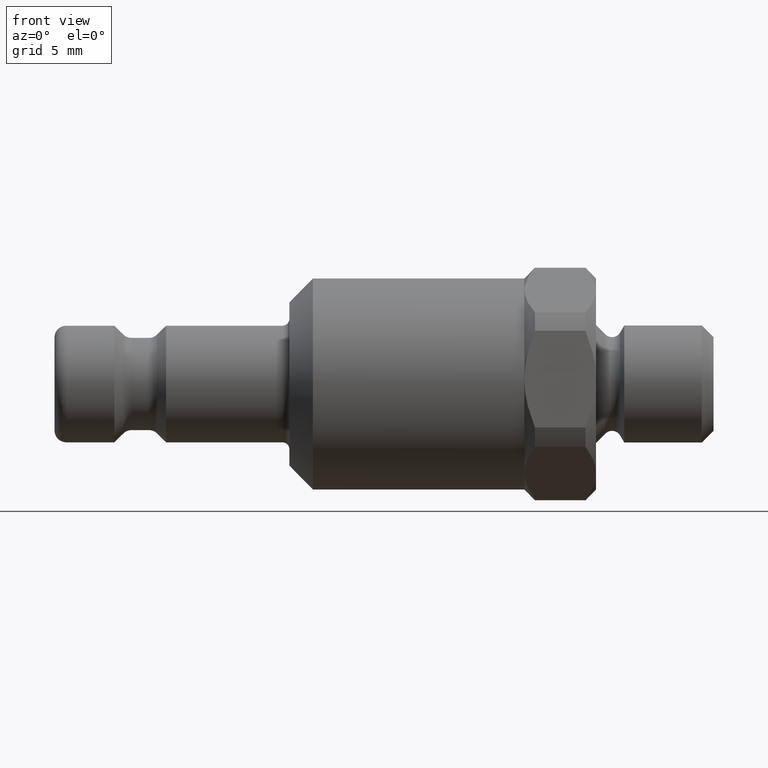
[diagram: clean part render]
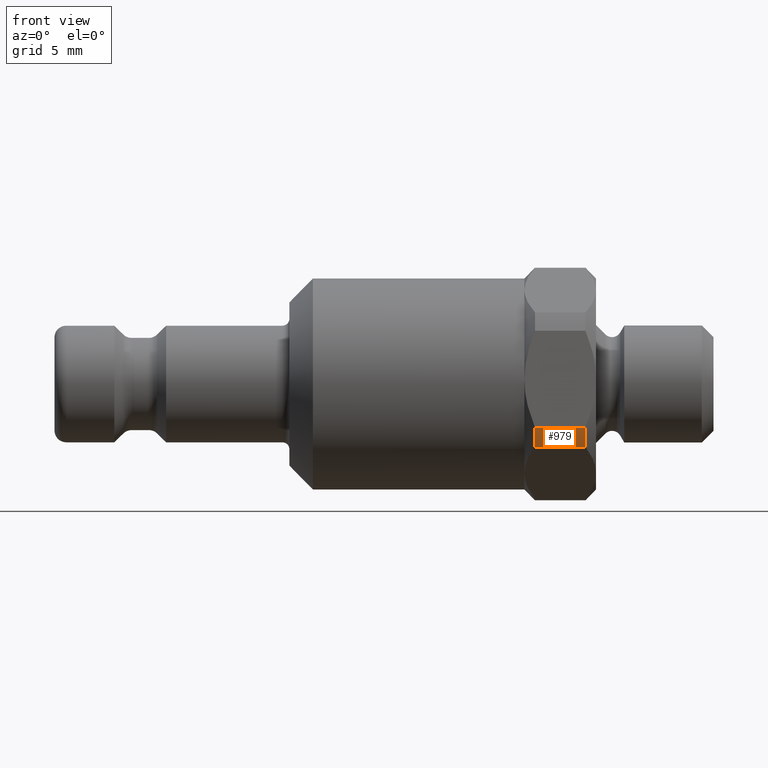
[diagram: same view with one face highlighted and labeled with its STEP entity id]
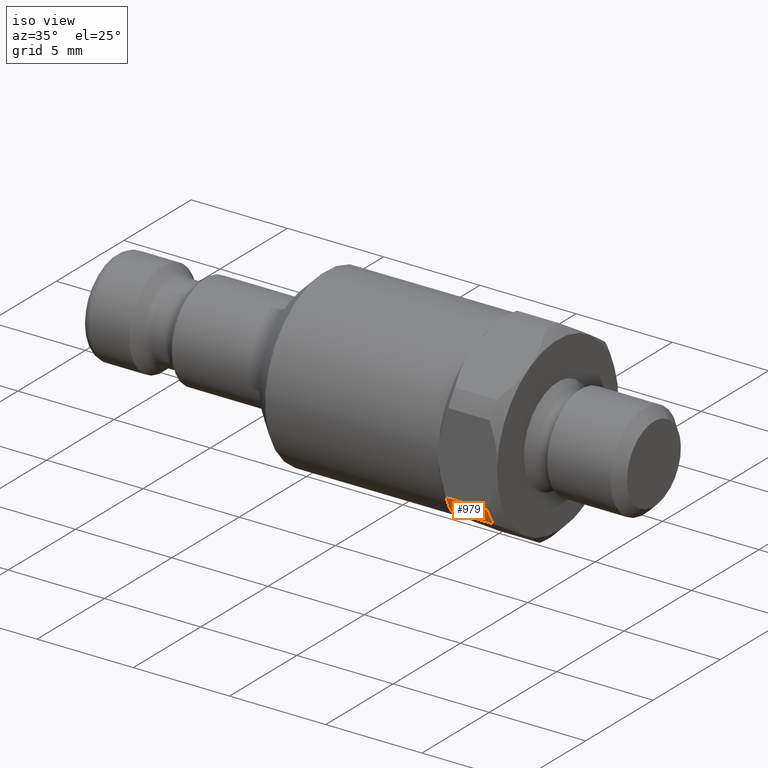
[diagram: same view with one face highlighted and labeled with its STEP entity id]
A machine part, front view. The second image highlights one B-rep face of the part: STEP entity #979.
A second angle (iso view) of the same face is appended — the face is thin or edge-on in the first view.
In plain terms, the highlighted cylindrical surface (partial cylindrical patch) has radius 4.95 mm, axis along (-1, -0, 0).
Its self-contained STEP definition (entity closure, byte-faithful):
#751=CARTESIAN_POINT('',(22.600000000000001,-4.590357534278819,-1.852327645825568));
#752=VERTEX_POINT('',#751);
#766=CARTESIAN_POINT('',(22.600000000000001,-4.163825719287686,-2.676762107360009));
#767=VERTEX_POINT('',#766);
#768=CARTESIAN_POINT('',(22.600000000000001,-3.600310E-016,-3.925816E-031));
#769=DIRECTION('',(-1.0,-1.922244E-017,-3.000577E-017));
#770=DIRECTION('',(-3.563494E-017,0.539426854334437,0.842032463045727));
#771=AXIS2_PLACEMENT_3D('',#768,#769,#770);
#772=CIRCLE('',#771,4.950000000000001);
#773=EDGE_CURVE('',#767,#752,#772,.T.);
#948=CARTESIAN_POINT('',(21.525000000000002,-4.310463E-016,-2.998288E-031));
#949=DIRECTION('',(-1.0,-6.606074E-017,8.628166E-032));
#950=DIRECTION('',(-3.563494E-017,0.539426854334437,0.842032463045727));
#951=AXIS2_PLACEMENT_3D('',#948,#949,#950);
#952=CYLINDRICAL_SURFACE('',#951,4.950000000000002);
#953=CARTESIAN_POINT('',(20.450000000000003,-4.590357534278819,-1.85232764582557));
#954=VERTEX_POINT('',#953);
#955=CARTESIAN_POINT('',(22.600000000000001,-4.590357534278819,-1.852327645825569));
#956=DIRECTION('',(-1.0,0.0,0.0));
#957=VECTOR('',#956,2.149999999999999);
#958=LINE('',#955,#957);
#959=EDGE_CURVE('',#752,#954,#958,.T.);
#960=ORIENTED_EDGE('',*,*,#959,.T.);
#961=CARTESIAN_POINT('',(20.450000000000003,-4.163825719287687,-2.676762107360009));
#962=VERTEX_POINT('',#961);
#963=CARTESIAN_POINT('',(20.450000000000003,-5.020616E-016,-2.070760E-031));
#964=DIRECTION('',(-1.0,-1.922244E-017,-3.000577E-017));
#965=DIRECTION('',(-3.563494E-017,0.539426854334437,0.842032463045727));
#966=AXIS2_PLACEMENT_3D('',#963,#964,#965);
#967=CIRCLE('',#966,4.950000000000002);
#968=EDGE_CURVE('',#962,#954,#967,.T.);
#969=ORIENTED_EDGE('',*,*,#968,.F.);
#970=CARTESIAN_POINT('',(20.450000000000003,-4.163825719287686,-2.676762107360011));
#971=DIRECTION('',(1.0,0.0,0.0));
#972=VECTOR('',#971,2.149999999999999);
#973=LINE('',#970,#972);
#974=EDGE_CURVE('',#962,#767,#973,.T.);
#975=ORIENTED_EDGE('',*,*,#974,.T.);
#976=ORIENTED_EDGE('',*,*,#773,.T.);
#977=EDGE_LOOP('',(#960,#969,#975,#976));
#978=FACE_OUTER_BOUND('',#977,.T.);
#979=ADVANCED_FACE('',(#978),#952,.T.);